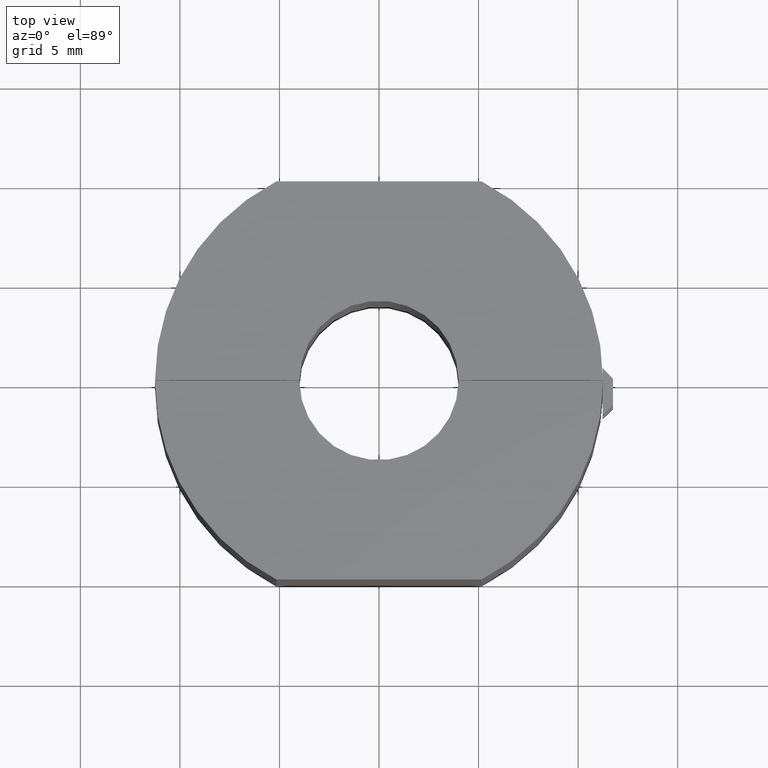
[diagram: clean part render]
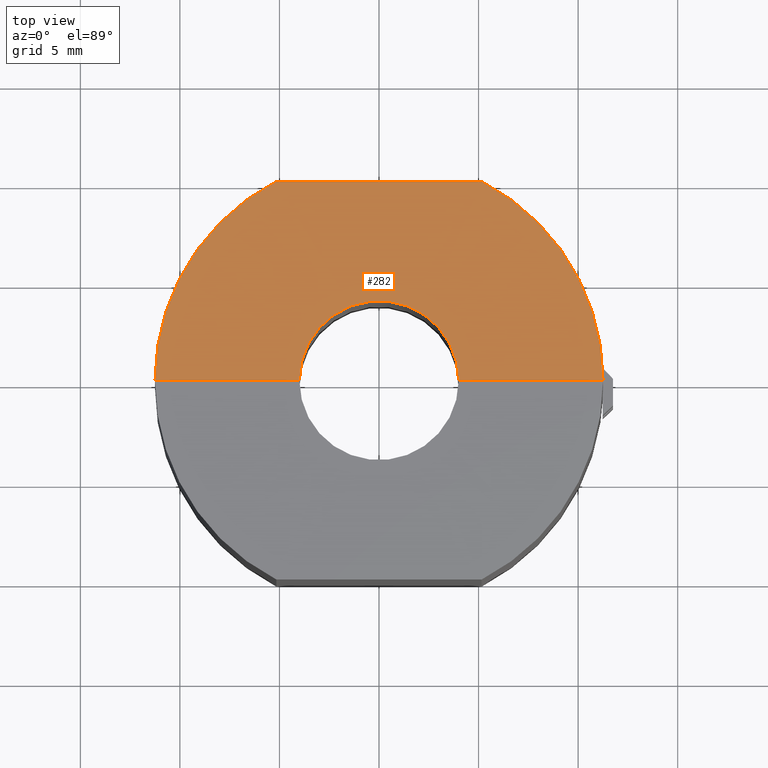
[diagram: same view with one face highlighted and labeled with its STEP entity id]
A machine part, top view. The second image highlights one B-rep face of the part: STEP entity #282.
In plain terms, the highlighted planar face has unit normal (0, 0, 1).
Its self-contained STEP definition (entity closure, byte-faithful):
#70 = ORIENTED_EDGE ( 'NONE', *, *, #1972, .T. ) ;
#206 = EDGE_CURVE ( 'NONE', #994, #3086, #1291, .T. ) ;
#282 = ADVANCED_FACE ( 'NONE', ( #406 ), #1454, .T. ) ;
#337 = DIRECTION ( 'NONE',  ( -1.000000000000000000, -1.224244953098215300E-016, 0.0000000000000000000 ) ) ;
#393 = VECTOR ( 'NONE', #926, 1000.000000000000000 ) ;
#406 = FACE_OUTER_BOUND ( 'NONE', #2035, .T. ) ;
#483 = VERTEX_POINT ( 'NONE', #2820 ) ;
#534 = DIRECTION ( 'NONE',  ( 0.0000000000000000000, 0.0000000000000000000, 1.000000000000000000 ) ) ;
#576 = ORIENTED_EDGE ( 'NONE', *, *, #1409, .F. ) ;
#609 = CARTESIAN_POINT ( 'NONE',  ( -3.999987499980468500, 0.009999999999998133600, 10.25000000000000000 ) ) ;
#781 = CARTESIAN_POINT ( 'NONE',  ( -5.153883109957860100, 9.999999444444540600, 10.25000000000000000 ) ) ;
#787 = DIRECTION ( 'NONE',  ( 0.0000000000000000000, 0.0000000000000000000, 1.000000000000000000 ) ) ;
#828 = CARTESIAN_POINT ( 'NONE',  ( 0.0000000000000000000, 0.0000000000000000000, 10.25000000000000000 ) ) ;
#845 = LINE ( 'NONE', #1875, #393 ) ;
#849 = DIRECTION ( 'NONE',  ( 0.0000000000000000000, 0.0000000000000000000, 1.000000000000000000 ) ) ;
#926 = DIRECTION ( 'NONE',  ( 1.000000000000000000, 0.0000000000000000000, 0.0000000000000000000 ) ) ;
#994 = VERTEX_POINT ( 'NONE', #781 ) ;
#1025 = ORIENTED_EDGE ( 'NONE', *, *, #2961, .F. ) ;
#1067 = DIRECTION ( 'NONE',  ( 1.000000000000000000, 0.0000000000000000000, 0.0000000000000000000 ) ) ;
#1076 = VERTEX_POINT ( 'NONE', #609 ) ;
#1167 = DIRECTION ( 'NONE',  ( 1.000000000000000000, 0.0000000000000000000, 0.0000000000000000000 ) ) ;
#1201 = EDGE_CURVE ( 'NONE', #1303, #483, #1382, .T. ) ;
#1252 = CIRCLE ( 'NONE', #1446, 11.25000000000000200 ) ;
#1291 = CIRCLE ( 'NONE', #1650, 11.25000000000000200 ) ;
#1303 = VERTEX_POINT ( 'NONE', #2719 ) ;
#1382 = LINE ( 'NONE', #2073, #2863 ) ;
#1409 = EDGE_CURVE ( 'NONE', #1076, #3086, #1760, .T. ) ;
#1446 = AXIS2_PLACEMENT_3D ( 'NONE', #828, #849, #1067 ) ;
#1454 = PLANE ( 'NONE',  #3051 ) ;
#1645 = VECTOR ( 'NONE', #337, 1000.000000000000000 ) ;
#1650 = AXIS2_PLACEMENT_3D ( 'NONE', #2439, #534, #2675 ) ;
#1687 = CARTESIAN_POINT ( 'NONE',  ( -11.25000000000000200, 0.009999999999997245500, 10.25000000000000000 ) ) ;
#1712 = CARTESIAN_POINT ( 'NONE',  ( 0.0000000000000000000, 0.0000000000000000000, 10.25000000000000000 ) ) ;
#1760 = LINE ( 'NONE', #2706, #1645 ) ;
#1834 = EDGE_CURVE ( 'NONE', #483, #1076, #2208, .T. ) ;
#1875 = CARTESIAN_POINT ( 'NONE',  ( 0.0000000000000000000, 10.00000444444357100, 10.25000000000000000 ) ) ;
#1879 = DIRECTION ( 'NONE',  ( 0.0000000000000000000, 0.0000000000000000000, 1.000000000000000000 ) ) ;
#1962 = ORIENTED_EDGE ( 'NONE', *, *, #1201, .F. ) ;
#1972 = EDGE_CURVE ( 'NONE', #1303, #3127, #1252, .T. ) ;
#2035 = EDGE_LOOP ( 'NONE', ( #1025, #2430, #576, #2542, #1962, #70 ) ) ;
#2073 = CARTESIAN_POINT ( 'NONE',  ( 11.25000000000000400, 0.01000000000000000000, 10.25000000000000000 ) ) ;
#2208 = CIRCLE ( 'NONE', #2250, 4.000000000000000000 ) ;
#2210 = DIRECTION ( 'NONE',  ( 1.000000000000000000, 0.0000000000000000000, -0.0000000000000000000 ) ) ;
#2250 = AXIS2_PLACEMENT_3D ( 'NONE', #2626, #1879, #1167 ) ;
#2321 = DIRECTION ( 'NONE',  ( -1.000000000000000000, -1.224244953098215300E-016, 0.0000000000000000000 ) ) ;
#2423 = CARTESIAN_POINT ( 'NONE',  ( 5.153883109957860100, 10.00000444444357100, 10.25000000000000000 ) ) ;
#2430 = ORIENTED_EDGE ( 'NONE', *, *, #206, .T. ) ;
#2439 = CARTESIAN_POINT ( 'NONE',  ( 0.0000000000000000000, 0.0000000000000000000, 10.25000000000000000 ) ) ;
#2542 = ORIENTED_EDGE ( 'NONE', *, *, #1834, .F. ) ;
#2626 = CARTESIAN_POINT ( 'NONE',  ( 0.0000000000000000000, 0.0000000000000000000, 10.25000000000000000 ) ) ;
#2675 = DIRECTION ( 'NONE',  ( 1.000000000000000000, 0.0000000000000000000, 0.0000000000000000000 ) ) ;
#2706 = CARTESIAN_POINT ( 'NONE',  ( 11.25000000000000400, 0.01000000000000000000, 10.25000000000000000 ) ) ;
#2719 = CARTESIAN_POINT ( 'NONE',  ( 11.25000000000000400, 0.01000000000000000000, 10.25000000000000000 ) ) ;
#2820 = CARTESIAN_POINT ( 'NONE',  ( 3.999987499980468500, 0.009999999999999113800, 10.25000000000000000 ) ) ;
#2863 = VECTOR ( 'NONE', #2321, 1000.000000000000000 ) ;
#2961 = EDGE_CURVE ( 'NONE', #994, #3127, #845, .T. ) ;
#3051 = AXIS2_PLACEMENT_3D ( 'NONE', #1712, #787, #2210 ) ;
#3086 = VERTEX_POINT ( 'NONE', #1687 ) ;
#3127 = VERTEX_POINT ( 'NONE', #2423 ) ;